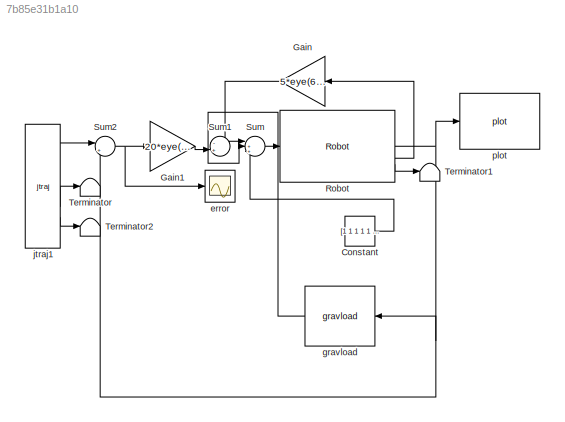
MODEL slx_7b85e31b1a10
KIND model
CONFIG AbsTol = auto
CONFIG EnableMultiTasking = off
CONFIG FixedStep = auto
CONFIG MaxStep = auto
CONFIG MinStep = auto
CONFIG PreLoadFcn = mdl_puma560
CONFIG RelTol = 1e-3
CONFIG SampleTimeConstraint = Unconstrained
CONFIG SolverName = ode23t
CONFIG StartTime = 0.0
CONFIG StopTime = 5
BLOCK [Constant] Constant
  Value = [1 1 1 1 1 1]
BLOCK [Gain] Gain
  Gain = 5*eye(6,6)
  Multiplication = Matrix(K*u) (u vector)
  NameLocation = top
BLOCK [Gain] Gain1
  Gain = 20*eye(6,6)
  Multiplication = Matrix(K*u) (u vector)
BLOCK [Reference] Robot  REF=roblocks/Arm/Robot  (lib defined in mdl_2a292b13c81b, mdl_69400f8cfe22, +12 more)
  SourceBlock = roblocks/Arm/Robot
BLOCK [Sum] Sum
  Inputs = |+++
BLOCK [Sum] Sum1
  Inputs = -+|
BLOCK [Sum] Sum2
  Inputs = |+-
BLOCK [Terminator] Terminator
BLOCK [Terminator] Terminator1
BLOCK [Terminator] Terminator2
BLOCK [Scope] error
  Floating = off
  NumInputPorts = 1
  ScopeSpecificationString = Simulink.scopes.TimeScopeBlockCfg('CurrentConfiguration', extmgr.ConfigurationSet(extmgr.Configuration('Core','General UI',true),extmgr.Configuration('Core','Source UI',true),extmgr.Configuration('Sources','WiredSimulink',true),extmgr.Configuration('Visuals','Time Domain',true,'SerializedDisplays',{struct('MinYLimReal','-0.08617','MaxYLimReal','0.23682','YLabelReal','','MinYLimMag','0.00000','MaxY...<+1510ch>
BLOCK [Reference] gravload  REF=roblocks/Arm/gravload  (lib defined in mdl_2a292b13c81b, mdl_69400f8cfe22, +12 more)
  NameLocation = top
  SourceBlock = roblocks/Arm/gravload
BLOCK [Reference] jtraj1  REF=roblocks/Toolbox/jtraj  (lib defined in mdl_2a292b13c81b, mdl_69400f8cfe22, +12 more)
  SourceBlock = roblocks/Toolbox/jtraj
BLOCK [Reference] plot  REF=roblocks/Arm/plot  (lib defined in mdl_2a292b13c81b, mdl_69400f8cfe22, +12 more)
  SourceBlock = roblocks/Arm/plot
LINE Constant:1 -> Sum:3
LINE Gain1:1 -> Sum1:2
LINE Gain:1 -> Sum1:1
NET Robot:1 -> Sum2:2, gravload:1, plot:1
LINE Robot:2 -> Gain:1
LINE Robot:3 -> Terminator1:1
LINE Sum1:1 -> Sum:1
NET Sum2:1 -> Gain1:1, error:1
LINE Sum:1 -> Robot:1
LINE gravload:1 -> Sum:2
LINE jtraj1:1 -> Sum2:1
LINE jtraj1:2 -> Terminator:1
LINE jtraj1:3 -> Terminator2:1
note: NET lines group one-source signal fan-out (src -> all destinations, sorted); 1:1 wires keep LINE
